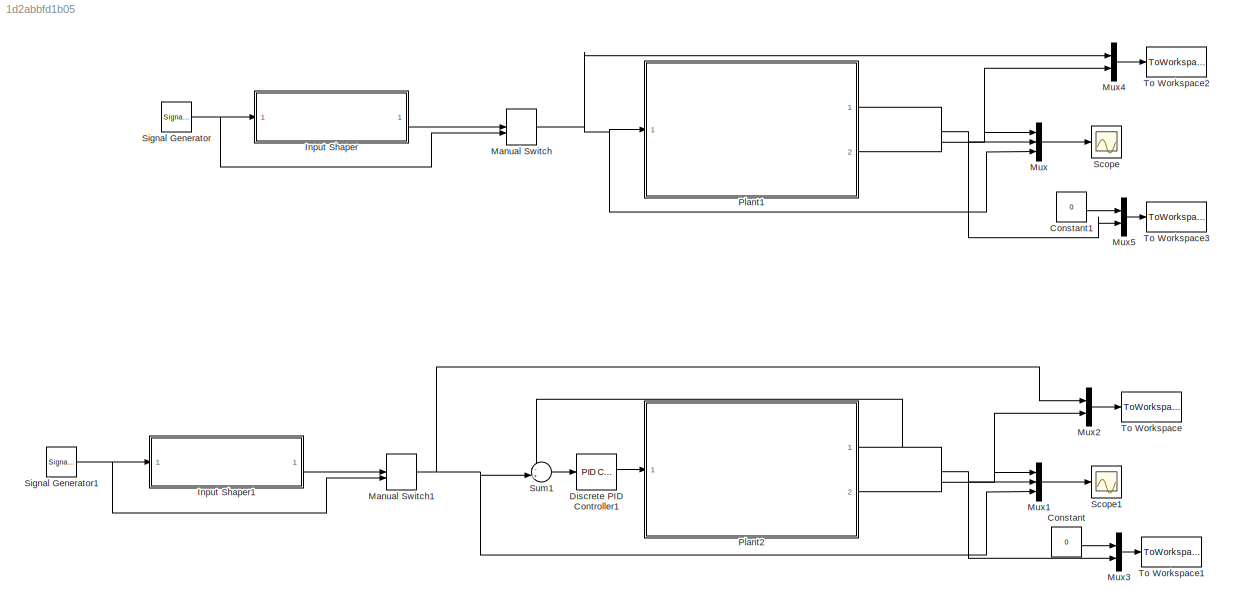
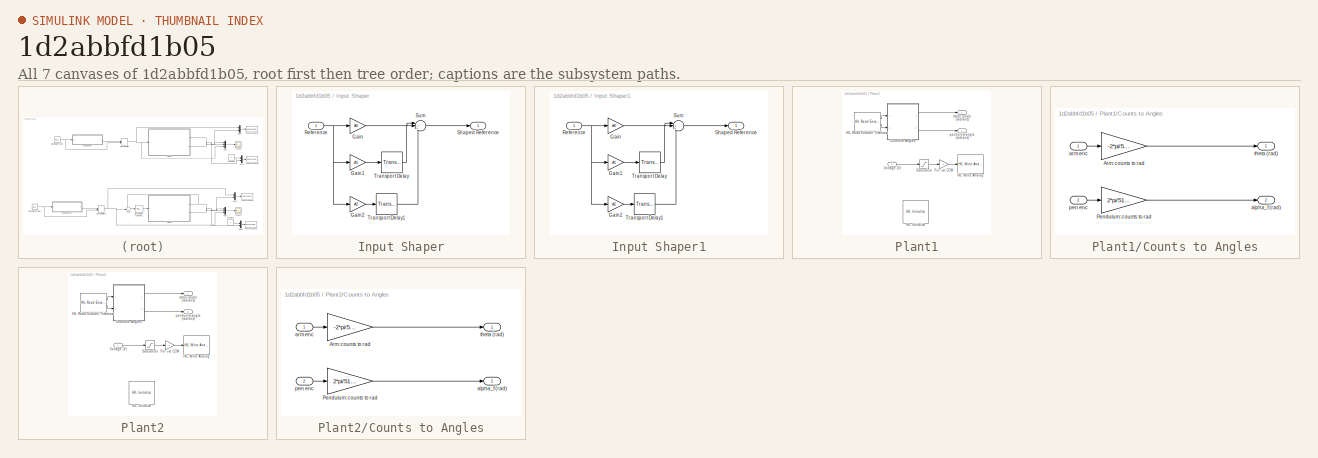
[diagram: thumbnail index - all 7 canvases of the model, root first then tree order]
MODEL slx_1d2abbfd1b05
KIND model
CONFIG AbsTol = auto
CONFIG EnableMultiTasking = on
CONFIG FixedStep = 0.002
CONFIG MaxStep = auto
CONFIG MinStep = auto
CONFIG RelTol = 1e-3
CONFIG SampleTimeConstraint = Unconstrained
CONFIG Solver = FixedStepDiscrete
CONFIG SolverName = FixedStepDiscrete
CONFIG StartTime = 0.0
CONFIG StopTime = inf
BLOCK [Constant] Constant
  Value = 0
BLOCK [Constant] Constant1
  Value = 0
BLOCK [Reference] Discrete PID Controller1  REF=simulink/Continuous/PID Controller
  Ports = [1, 1]
  SourceBlock = simulink/Continuous/PID Controller
  SourceProductBaseCode = SL
  SourceProductName = Simulink
  SourceType = PID 1dof
BLOCK [SubSystem] Input Shaper
  Ports = [1, 1]
  RequestExecContextInheritance = off
BLOCK [Gain] Input Shaper/Gain
  Gain = A0
  OutDataTypeStr = Inherit: Inherit via internal rule
  ParamDataTypeStr = Inherit: Inherit via internal rule
  SaturateOnIntegerOverflow = off
BLOCK [Gain] Input Shaper/Gain1
  Gain = A1
  OutDataTypeStr = Inherit: Inherit via internal rule
  ParamDataTypeStr = Inherit: Inherit via internal rule
  SaturateOnIntegerOverflow = off
BLOCK [Gain] Input Shaper/Gain2
  Gain = A2
  OutDataTypeStr = Inherit: Inherit via internal rule
  ParamDataTypeStr = Inherit: Inherit via internal rule
  SaturateOnIntegerOverflow = off
BLOCK [Inport] Input Shaper/Reference
  IconDisplay = Port number
BLOCK [Outport] Input Shaper/Shaped Reference
  IconDisplay = Port number
BLOCK [Sum] Input Shaper/Sum
  IconShape = round
  InputSameDT = off
  Inputs = |+++
  OutDataTypeStr = Inherit: Inherit via internal rule
  Ports = [3, 1]
  SaturateOnIntegerOverflow = off
BLOCK [TransportDelay] Input Shaper/Transport Delay
  DelayTime = t1
  Ports = [1, 1]
BLOCK [TransportDelay] Input Shaper/Transport Delay1
  DelayTime = t2
  Ports = [1, 1]
BLOCK [SubSystem] Input Shaper1
  Ports = [1, 1]
  RequestExecContextInheritance = off
BLOCK [Gain] Input Shaper1/Gain
  Gain = A0
  OutDataTypeStr = Inherit: Inherit via internal rule
  ParamDataTypeStr = Inherit: Inherit via internal rule
  SaturateOnIntegerOverflow = off
BLOCK [Gain] Input Shaper1/Gain1
  Gain = A1
  OutDataTypeStr = Inherit: Inherit via internal rule
  ParamDataTypeStr = Inherit: Inherit via internal rule
  SaturateOnIntegerOverflow = off
BLOCK [Gain] Input Shaper1/Gain2
  Gain = A2
  OutDataTypeStr = Inherit: Inherit via internal rule
  ParamDataTypeStr = Inherit: Inherit via internal rule
  SaturateOnIntegerOverflow = off
BLOCK [Inport] Input Shaper1/Reference
  IconDisplay = Port number
BLOCK [Outport] Input Shaper1/Shaped Reference
  IconDisplay = Port number
BLOCK [Sum] Input Shaper1/Sum
  IconShape = round
  InputSameDT = off
  Inputs = |+++
  OutDataTypeStr = Inherit: Inherit via internal rule
  Ports = [3, 1]
  SaturateOnIntegerOverflow = off
BLOCK [TransportDelay] Input Shaper1/Transport Delay
  DelayTime = t1
  Ports = [1, 1]
BLOCK [TransportDelay] Input Shaper1/Transport Delay1
  DelayTime = t2
  Ports = [1, 1]
BLOCK [ManualSwitch] Manual Switch
BLOCK [ManualSwitch] Manual Switch1
BLOCK [Mux] Mux
  DisplayOption = bar
  Inputs = 3
  Ports = [3, 1]
BLOCK [Mux] Mux1
  DisplayOption = bar
  Inputs = 3
  Ports = [3, 1]
BLOCK [Mux] Mux2
  DisplayOption = bar
  Inputs = 2
  Ports = [2, 1]
BLOCK [Mux] Mux3
  DisplayOption = bar
  Inputs = 2
  Ports = [2, 1]
BLOCK [Mux] Mux4
  DisplayOption = bar
  Inputs = 2
  Ports = [2, 1]
BLOCK [Mux] Mux5
  DisplayOption = bar
  Inputs = 2
  Ports = [2, 1]
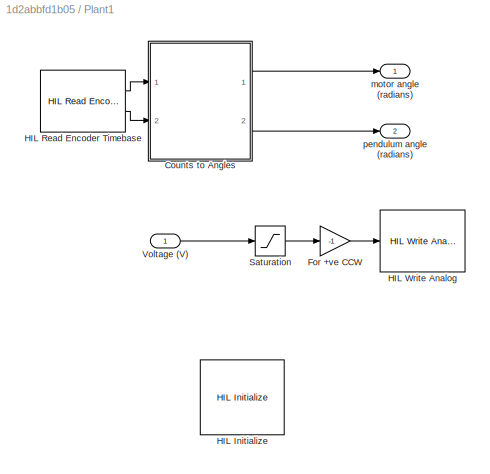
BLOCK [SubSystem] Plant1
  Ports = [1, 2]
  RequestExecContextInheritance = off
BLOCK [SubSystem] Plant1/Counts to Angles
  Ports = [2, 2]
  RequestExecContextInheritance = off
BLOCK [Gain] Plant1/Counts to Angles/Arm: counts to rad
  Gain = -2*pi/512/4
  OutDataTypeStr = Inherit: Inherit via internal rule
  ParamDataTypeStr = Inherit: Inherit via internal rule
  SaturateOnIntegerOverflow = off
BLOCK [Gain] Plant1/Counts to Angles/Pendulum: counts to rad
  Gain = 2*pi/512/4
  OutDataTypeStr = Inherit: Inherit via internal rule
  ParamDataTypeStr = Inherit: Inherit via internal rule
  SaturateOnIntegerOverflow = off
BLOCK [Outport] Plant1/Counts to Angles/alpha_f (rad)
  IconDisplay = Port number
  Port = 2
BLOCK [Inport] Plant1/Counts to Angles/arm enc
  IconDisplay = Port number
BLOCK [Inport] Plant1/Counts to Angles/pen enc
  IconDisplay = Port number
  Port = 2
BLOCK [Outport] Plant1/Counts to Angles/theta (rad)
  IconDisplay = Port number
BLOCK [Gain] Plant1/For +ve CCW
  Gain = -1
  OutDataTypeStr = Inherit: Inherit via internal rule
  ParamDataTypeStr = Inherit: Inherit via internal rule
  SaturateOnIntegerOverflow = off
BLOCK [Reference] Plant1/HIL Initialize  REF=quarc_library/Data Acquisition/Generic/Configuration/HIL Initialize
  AttributesFormatString = %<object_name> (%<board_type>-%<board_number>)
  Ports = []
  SourceBlock = quarc_library/Data Acquisition/Generic/Configuration/HIL Initialize
  SourceProductName = QUARC Targets
  SourceType = HIL Initialize
  UserDataPersistent = on
BLOCK [Reference] Plant1/HIL Read Encoder Timebase  REF=quarc_library/Data Acquisition/Generic/Timebases/HIL Read Encoder
Timebase
  AttributesFormatString = (%<object_name>)
  Ports = [0, 2]
  SourceBlock = quarc_library/Data Acquisition/Generic/Timebases/HIL Read Encoder\nTimebase
  SourceProductName = QUARC Targets
  SourceType = HIL Read Encoder Timebase
  UserDataPersistent = on
BLOCK [Reference] Plant1/HIL Write Analog  REF=quarc_library/Data Acquisition/Generic/Immediate I//O/HIL Write Analog
  AttributesFormatString = (%<object_name>)
  Ports = [1]
  SourceBlock = quarc_library/Data Acquisition/Generic/Immediate I//O/HIL Write Analog
  SourceProductName = QUARC Targets
  SourceType = HIL Write Analog
  UserDataPersistent = on
BLOCK [Saturate] Plant1/Saturation
  InputPortMap = u0
  LowerLimit = -10
  Ports = [1, 1]
  UpperLimit = 10
BLOCK [Inport] Plant1/Voltage (V)
  IconDisplay = Port number
BLOCK [Outport] Plant1/motor angle (radians)
  IconDisplay = Port number
BLOCK [Outport] Plant1/pendulum angle (radians)
  IconDisplay = Port number
  Port = 2
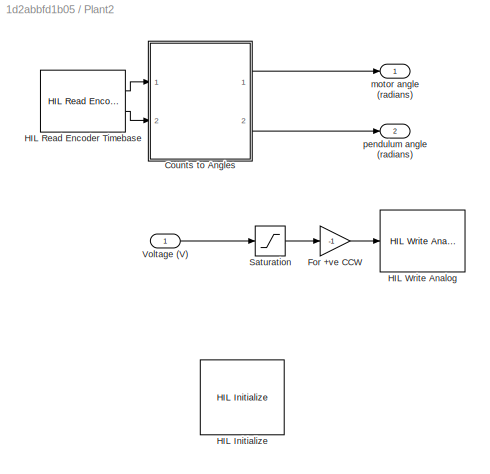
BLOCK [SubSystem] Plant2
  Ports = [1, 2]
  RequestExecContextInheritance = off
BLOCK [SubSystem] Plant2/Counts to Angles
  Ports = [2, 2]
  RequestExecContextInheritance = off
BLOCK [Gain] Plant2/Counts to Angles/Arm: counts to rad
  Gain = -2*pi/512/4
  OutDataTypeStr = Inherit: Inherit via internal rule
  ParamDataTypeStr = Inherit: Inherit via internal rule
  SaturateOnIntegerOverflow = off
BLOCK [Gain] Plant2/Counts to Angles/Pendulum: counts to rad
  Gain = 2*pi/512/4
  OutDataTypeStr = Inherit: Inherit via internal rule
  ParamDataTypeStr = Inherit: Inherit via internal rule
  SaturateOnIntegerOverflow = off
BLOCK [Outport] Plant2/Counts to Angles/alpha_f (rad)
  IconDisplay = Port number
  Port = 2
BLOCK [Inport] Plant2/Counts to Angles/arm enc
  IconDisplay = Port number
BLOCK [Inport] Plant2/Counts to Angles/pen enc
  IconDisplay = Port number
  Port = 2
BLOCK [Outport] Plant2/Counts to Angles/theta (rad)
  IconDisplay = Port number
BLOCK [Gain] Plant2/For +ve CCW
  Gain = -1
  OutDataTypeStr = Inherit: Inherit via internal rule
  ParamDataTypeStr = Inherit: Inherit via internal rule
  SaturateOnIntegerOverflow = off
BLOCK [Reference] Plant2/HIL Initialize  REF=quarc_library/Data Acquisition/Generic/Configuration/HIL Initialize
  AttributesFormatString = %<object_name> (%<board_type>-%<board_number>)
  Ports = []
  SourceBlock = quarc_library/Data Acquisition/Generic/Configuration/HIL Initialize
  SourceProductName = QUARC Targets
  SourceType = HIL Initialize
  UserDataPersistent = on
BLOCK [Reference] Plant2/HIL Read Encoder Timebase  REF=quarc_library/Data Acquisition/Generic/Timebases/HIL Read Encoder
Timebase
  AttributesFormatString = (%<object_name>)
  Ports = [0, 2]
  SourceBlock = quarc_library/Data Acquisition/Generic/Timebases/HIL Read Encoder\nTimebase
  SourceProductName = QUARC Targets
  SourceType = HIL Read Encoder Timebase
  UserDataPersistent = on
BLOCK [Reference] Plant2/HIL Write Analog  REF=quarc_library/Data Acquisition/Generic/Immediate I//O/HIL Write Analog
  AttributesFormatString = (%<object_name>)
  Ports = [1]
  SourceBlock = quarc_library/Data Acquisition/Generic/Immediate I//O/HIL Write Analog
  SourceProductName = QUARC Targets
  SourceType = HIL Write Analog
  UserDataPersistent = on
BLOCK [Saturate] Plant2/Saturation
  InputPortMap = u0
  LowerLimit = -10
  Ports = [1, 1]
  UpperLimit = 10
BLOCK [Inport] Plant2/Voltage (V)
  IconDisplay = Port number
BLOCK [Outport] Plant2/motor angle (radians)
  IconDisplay = Port number
BLOCK [Outport] Plant2/pendulum angle (radians)
  IconDisplay = Port number
  Port = 2
BLOCK [Scope] Scope
  Floating = off
  NumInputPorts = 1
  Ports = [1]
  ScopeSpecificationString = Simulink.scopes.TimeScopeBlockCfg('CurrentConfiguration', extmgr.ConfigurationSet(extmgr.Configuration('Core','General UI',true),extmgr.Configuration('Core','Source UI',true),extmgr.Configuration('Sources','WiredSimulink',true,'DataLogging',true,'DataLoggingSaveFormat','Array'),extmgr.Configuration('Visuals','Time Domain',true,'SerializedDisplays',{struct('MinYLimReal','-1.88411','MaxYLimReal','1....<+1478ch>
BLOCK [Scope] Scope1
  Floating = off
  NumInputPorts = 1
  Ports = [1]
  ScopeSpecificationString = Simulink.scopes.TimeScopeBlockCfg('CurrentConfiguration', extmgr.ConfigurationSet(extmgr.Configuration('Core','General UI',true),extmgr.Configuration('Core','Source UI',true),extmgr.Configuration('Sources','WiredSimulink',true,'DataLogging',true,'DataLoggingSaveFormat','Array','DataLoggingVariableName','ScopeData1'),extmgr.Configuration('Visuals','Time Domain',true,'SerializedDisplays',{struct('Mi...<+1491ch>
BLOCK [SignalGenerator] Signal Generator
  Amplitude = .5
  Frequency = 0.5
  Ports = [0, 1]
  Units = rad/sec
  WaveForm = square
BLOCK [SignalGenerator] Signal Generator1
  Frequency = 0.5
  Ports = [0, 1]
  Units = rad/sec
  WaveForm = square
BLOCK [Sum] Sum1
  IconShape = round
  InputSameDT = off
  Inputs = -+|
  OutDataTypeStr = Inherit: Inherit via internal rule
  Ports = [2, 1]
  SaturateOnIntegerOverflow = off
BLOCK [ToWorkspace] To Workspace
  FixptAsFi = on
  MaxDataPoints = inf
  Ports = [1]
  SampleTime = -1
  Save2DSignal = 3-D array (concatenate along third dimension)
  VariableName = theta
BLOCK [ToWorkspace] To Workspace1
  FixptAsFi = on
  MaxDataPoints = inf
  Ports = [1]
  SampleTime = -1
  Save2DSignal = 3-D array (concatenate along third dimension)
  VariableName = alpha
BLOCK [ToWorkspace] To Workspace2
  FixptAsFi = on
  MaxDataPoints = inf
  Ports = [1]
  SampleTime = -1
  Save2DSignal = 3-D array (concatenate along third dimension)
  VariableName = theta
BLOCK [ToWorkspace] To Workspace3
  FixptAsFi = on
  MaxDataPoints = inf
  Ports = [1]
  SampleTime = -1
  Save2DSignal = 3-D array (concatenate along third dimension)
  VariableName = alpha
LINE Constant1:1 -> Mux5:1
LINE Constant:1 -> Mux3:1
LINE Discrete PID Controller1:1 -> Plant2:1
LINE Input Shaper/Gain1:1 -> Input Shaper/Transport Delay:1
LINE Input Shaper/Gain2:1 -> Input Shaper/Transport Delay1:1
LINE Input Shaper/Gain:1 -> Input Shaper/Sum:1
NET Input Shaper/Reference:1 -> Input Shaper/Gain1:1, Input Shaper/Gain2:1, Input Shaper/Gain:1
LINE Input Shaper/Sum:1 -> Input Shaper/Shaped Reference:1
LINE Input Shaper/Transport Delay1:1 -> Input Shaper/Sum:3
LINE Input Shaper/Transport Delay:1 -> Input Shaper/Sum:2
LINE Input Shaper1/Gain1:1 -> Input Shaper1/Transport Delay:1
LINE Input Shaper1/Gain2:1 -> Input Shaper1/Transport Delay1:1
LINE Input Shaper1/Gain:1 -> Input Shaper1/Sum:1
NET Input Shaper1/Reference:1 -> Input Shaper1/Gain1:1, Input Shaper1/Gain2:1, Input Shaper1/Gain:1
LINE Input Shaper1/Sum:1 -> Input Shaper1/Shaped Reference:1
LINE Input Shaper1/Transport Delay1:1 -> Input Shaper1/Sum:3
LINE Input Shaper1/Transport Delay:1 -> Input Shaper1/Sum:2
LINE Input Shaper1:1 -> Manual Switch1:1
LINE Input Shaper:1 -> Manual Switch:1
NET Manual Switch1:1 -> Mux1:3, Mux2:1, Sum1:2
NET Manual Switch:1 -> Mux4:1, Mux:3, Plant1:1
LINE Mux1:1 -> Scope1:1
LINE Mux2:1 -> To Workspace:1
LINE Mux3:1 -> To Workspace1:1
LINE Mux4:1 -> To Workspace2:1
LINE Mux5:1 -> To Workspace3:1
LINE Mux:1 -> Scope:1
LINE Plant1/Counts to Angles/Arm: counts to rad:1 -> Plant1/Counts to Angles/theta (rad):1
LINE Plant1/Counts to Angles/Pendulum: counts to rad:1 -> Plant1/Counts to Angles/alpha_f (rad):1
LINE Plant1/Counts to Angles/arm enc:1 -> Plant1/Counts to Angles/Arm: counts to rad:1
LINE Plant1/Counts to Angles/pen enc:1 -> Plant1/Counts to Angles/Pendulum: counts to rad:1
LINE Plant1/Counts to Angles:1 -> Plant1/motor angle (radians):1
LINE Plant1/Counts to Angles:2 -> Plant1/pendulum angle (radians):1
LINE Plant1/For +ve CCW:1 -> Plant1/HIL Write Analog:1
LINE Plant1/HIL Read Encoder Timebase:1 -> Plant1/Counts to Angles:1
LINE Plant1/HIL Read Encoder Timebase:2 -> Plant1/Counts to Angles:2
LINE Plant1/Saturation:1 -> Plant1/For +ve CCW:1
LINE Plant1/Voltage (V):1 -> Plant1/Saturation:1
NET Plant1:1 -> Mux4:2, Mux:1
NET Plant1:2 -> Mux5:2, Mux:2
LINE Plant2/Counts to Angles/Arm: counts to rad:1 -> Plant2/Counts to Angles/theta (rad):1
LINE Plant2/Counts to Angles/Pendulum: counts to rad:1 -> Plant2/Counts to Angles/alpha_f (rad):1
LINE Plant2/Counts to Angles/arm enc:1 -> Plant2/Counts to Angles/Arm: counts to rad:1
LINE Plant2/Counts to Angles/pen enc:1 -> Plant2/Counts to Angles/Pendulum: counts to rad:1
LINE Plant2/Counts to Angles:1 -> Plant2/motor angle (radians):1
LINE Plant2/Counts to Angles:2 -> Plant2/pendulum angle (radians):1
LINE Plant2/For +ve CCW:1 -> Plant2/HIL Write Analog:1
LINE Plant2/HIL Read Encoder Timebase:1 -> Plant2/Counts to Angles:1
LINE Plant2/HIL Read Encoder Timebase:2 -> Plant2/Counts to Angles:2
LINE Plant2/Saturation:1 -> Plant2/For +ve CCW:1
LINE Plant2/Voltage (V):1 -> Plant2/Saturation:1
NET Plant2:1 -> Mux1:1, Mux2:2, Sum1:1
NET Plant2:2 -> Mux1:2, Mux3:2
NET Signal Generator1:1 -> Input Shaper1:1, Manual Switch1:2
NET Signal Generator:1 -> Input Shaper:1, Manual Switch:2
LINE Sum1:1 -> Discrete PID Controller1:1
note: NET lines group one-source signal fan-out (src -> all destinations, sorted); 1:1 wires keep LINE
